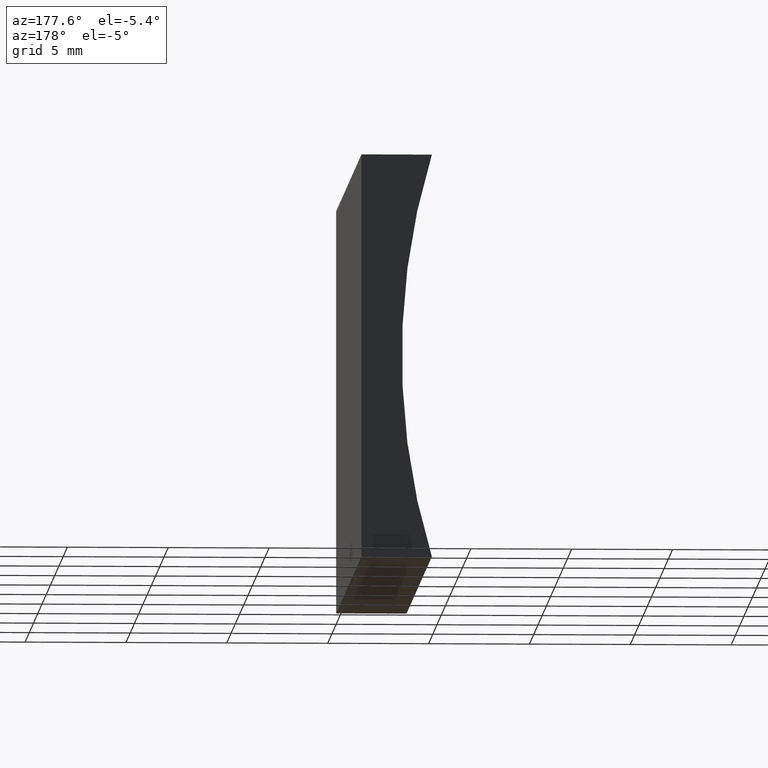
[diagram: clean part render]
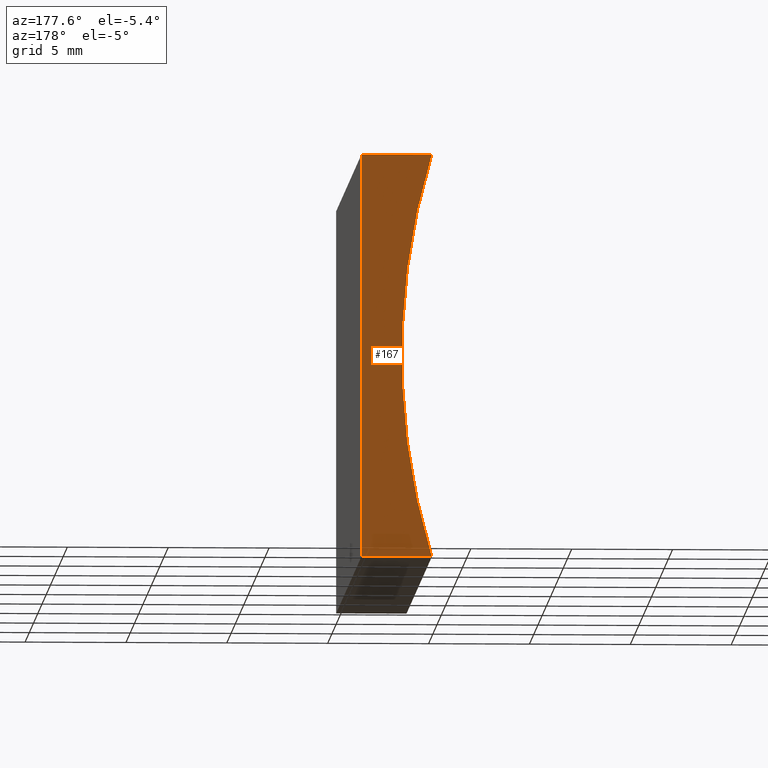
[diagram: same view with one face highlighted and labeled with its STEP entity id]
A machine part, auxiliary view. The second image highlights one B-rep face of the part: STEP entity #167.
In plain terms, the highlighted planar face has unit normal (0, 1, 0).
Its self-contained STEP definition (entity closure, byte-faithful):
#3 = DIRECTION ( 'NONE',  ( -1.224646799147353200E-016, -0.0000000000000000000, -1.000000000000000000 ) ) ;
#6 = VERTEX_POINT ( 'NONE', #32 ) ;
#9 = DIRECTION ( 'NONE',  ( 0.0000000000000000000, -0.0000000000000000000, 1.000000000000000000 ) ) ;
#15 = AXIS2_PLACEMENT_3D ( 'NONE', #125, #72, #9 ) ;
#18 = EDGE_CURVE ( 'NONE', #6, #87, #71, .T. ) ;
#20 = DIRECTION ( 'NONE',  ( -1.000000000000000000, 0.0000000000000000000, 1.989461202798745500E-015 ) ) ;
#25 = CARTESIAN_POINT ( 'NONE',  ( 0.0000000000000000000, 30.00000000000000000, 0.0000000000000000000 ) ) ;
#29 = CARTESIAN_POINT ( 'NONE',  ( 0.0000000000000000000, 30.00000000000000000, 0.0000000000000000000 ) ) ;
#32 = CARTESIAN_POINT ( 'NONE',  ( -3.487825695794261700, 30.00000000000000000, 19.99999999999999600 ) ) ;
#46 = DIRECTION ( 'NONE',  ( 1.000000000000000000, -0.0000000000000000000, 9.947306013993727700E-016 ) ) ;
#48 = ORIENTED_EDGE ( 'NONE', *, *, #18, .T. ) ;
#50 = ORIENTED_EDGE ( 'NONE', *, *, #185, .T. ) ;
#52 = PLANE ( 'NONE',  #15 ) ;
#59 = AXIS2_PLACEMENT_3D ( 'NONE', #76, #63, #118 ) ;
#61 = VERTEX_POINT ( 'NONE', #67 ) ;
#63 = DIRECTION ( 'NONE',  ( -0.0000000000000000000, -1.000000000000000000, -0.0000000000000000000 ) ) ;
#67 = CARTESIAN_POINT ( 'NONE',  ( -3.487825695794269300, 30.00000000000000000, 6.938893903907228400E-015 ) ) ;
#70 = CARTESIAN_POINT ( 'NONE',  ( 0.0000000000000000000, 30.00000000000000000, 0.0000000000000000000 ) ) ;
#71 = LINE ( 'NONE', #192, #135 ) ;
#72 = DIRECTION ( 'NONE',  ( 0.0000000000000000000, 1.000000000000000000, 0.0000000000000000000 ) ) ;
#76 = CARTESIAN_POINT ( 'NONE',  ( -36.35000000000000100, 30.00000000000000000, 10.00000000000000700 ) ) ;
#83 = LINE ( 'NONE', #29, #91 ) ;
#85 = EDGE_CURVE ( 'NONE', #61, #6, #147, .T. ) ;
#87 = VERTEX_POINT ( 'NONE', #178 ) ;
#91 = VECTOR ( 'NONE', #20, 1000.000000000000000 ) ;
#118 = DIRECTION ( 'NONE',  ( 0.0000000000000000000, 0.0000000000000000000, 1.000000000000000000 ) ) ;
#125 = CARTESIAN_POINT ( 'NONE',  ( -36.35000000000000100, 30.00000000000000000, 10.00000000000000700 ) ) ;
#134 = VECTOR ( 'NONE', #3, 1000.000000000000000 ) ;
#135 = VECTOR ( 'NONE', #46, 1000.000000000000000 ) ;
#147 = CIRCLE ( 'NONE', #59, 34.34999999999999400 ) ;
#163 = FACE_OUTER_BOUND ( 'NONE', #176, .T. ) ;
#167 = ADVANCED_FACE ( 'NONE', ( #163 ), #52, .T. ) ;
#172 = ORIENTED_EDGE ( 'NONE', *, *, #181, .T. ) ;
#174 = LINE ( 'NONE', #25, #134 ) ;
#176 = EDGE_LOOP ( 'NONE', ( #50, #189, #48, #172 ) ) ;
#178 = CARTESIAN_POINT ( 'NONE',  ( 2.449293598294706500E-015, 30.00000000000000000, 20.00000000000000000 ) ) ;
#181 = EDGE_CURVE ( 'NONE', #87, #201, #174, .T. ) ;
#185 = EDGE_CURVE ( 'NONE', #201, #61, #83, .T. ) ;
#189 = ORIENTED_EDGE ( 'NONE', *, *, #85, .T. ) ;
#192 = CARTESIAN_POINT ( 'NONE',  ( 2.449293598294706500E-015, 30.00000000000000000, 20.00000000000000000 ) ) ;
#201 = VERTEX_POINT ( 'NONE', #70 ) ;